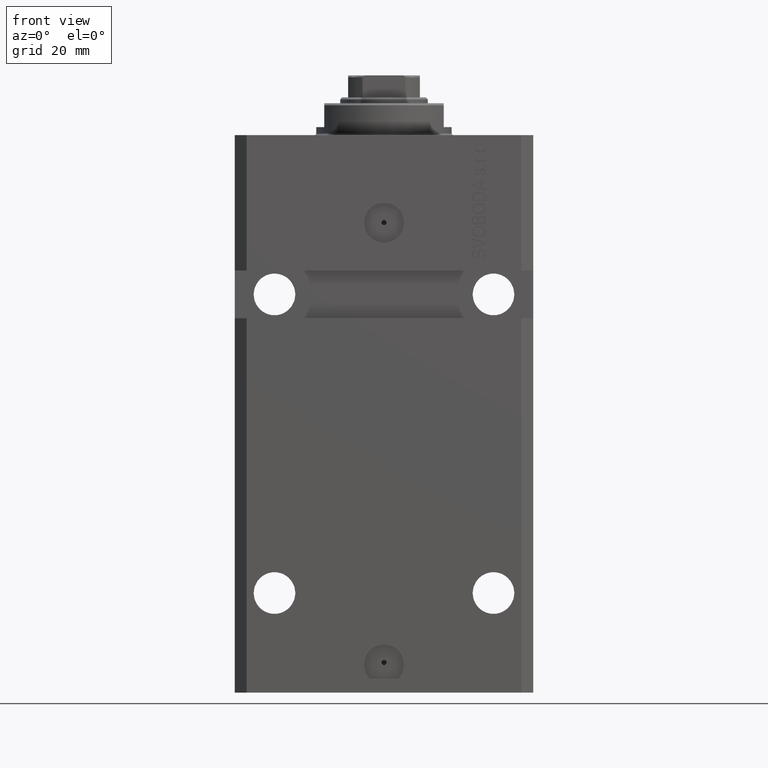
[diagram: clean part render]
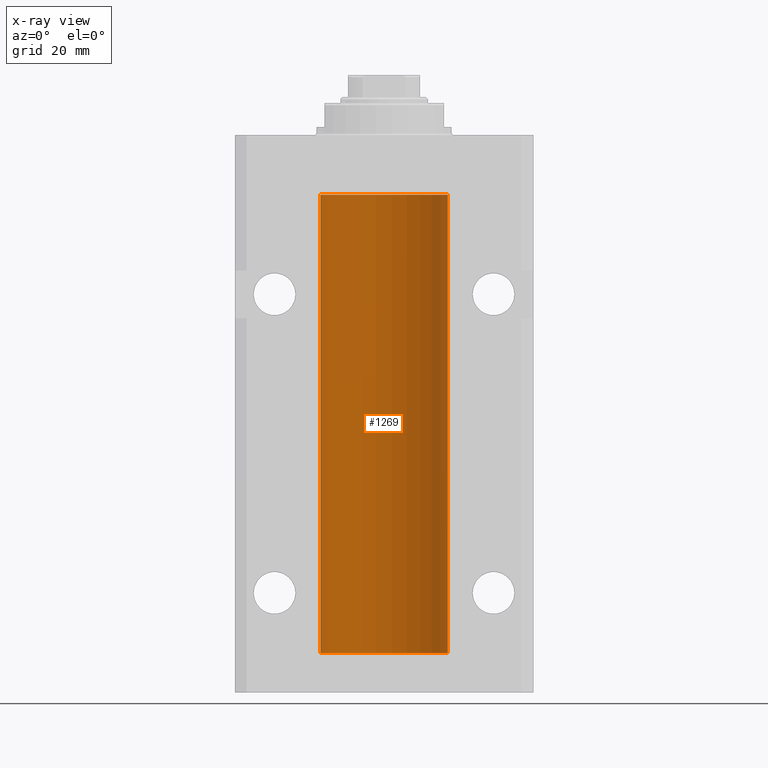
[diagram: x-ray — body ghosted, one internal face saturated and labeled with its STEP entity id]
A machine part, front view, then the same camera in x-ray: the body is ghosted and one INTERNAL B-rep face — a face not visible from any outside direction — is saturated and labeled: STEP entity #1269.
In plain terms, the highlighted cylindrical surface (partial cylindrical patch) has radius 16 mm, axis along (0, 0, 1).
Its self-contained STEP definition (entity closure, byte-faithful):
#329 = VERTEX_POINT ( 'NONE', #566 ) ;
#566 = CARTESIAN_POINT ( 'NONE',  ( -16.00000000000000000, 1.959434878635765131E-15, -130.0999999999999943 ) ) ;
#1269 = ADVANCED_FACE ( 'NONE', ( #21809 ), #36666, .F. ) ;
#1498 = CARTESIAN_POINT ( 'NONE',  ( -15.99707730059171240, 0.3150375992092247501, -127.4540233320256561 ) ) ;
#2246 = CARTESIAN_POINT ( 'NONE',  ( -15.98779057735153941, 0.6249419637998100407, -21.83670145863507273 ) ) ;
#2481 = CARTESIAN_POINT ( 'NONE',  ( -16.00000000000000000, 0.1631714642025800244, -22.62499999999985789 ) ) ;
#3940 = AXIS2_PLACEMENT_3D ( 'NONE', #25869, #29474, #29714 ) ;
#4009 = ORIENTED_EDGE ( 'NONE', *, *, #4869, .T. ) ;
#4211 = AXIS2_PLACEMENT_3D ( 'NONE', #16517, #31622, #31152 ) ;
#4853 = CARTESIAN_POINT ( 'NONE',  ( -16.00000000000000355, 0.08259886010188438599, -127.3749999999999574 ) ) ;
#4869 = EDGE_CURVE ( 'NONE', #18736, #7954, #21073, .T. ) ;
#5834 = CARTESIAN_POINT ( 'NONE',  ( -15.99070426498503217, 0.5462220647145618058, -22.31460064614143590 ) ) ;
#6303 = ORIENTED_EDGE ( 'NONE', *, *, #42989, .F. ) ;
#6544 = CARTESIAN_POINT ( 'NONE',  ( -15.99228023727724413, 0.5003781296993413674, -22.38347829554236057 ) ) ;
#6783 = CARTESIAN_POINT ( 'NONE',  ( -15.98844267028591482, 0.6088369347963316081, -22.16324735024328518 ) ) ;
#7954 = VERTEX_POINT ( 'NONE', #29837 ) ;
#8820 = VERTEX_POINT ( 'NONE', #35389 ) ;
#8901 = CARTESIAN_POINT ( 'NONE',  ( -15.99228023727723702, 0.5003781296993445871, -128.3834782955424032 ) ) ;
#9879 = EDGE_CURVE ( 'NONE', #34919, #25798, #24839, .T. ) ;
#10030 = ORIENTED_EDGE ( 'NONE', *, *, #14849, .F. ) ;
#10094 = EDGE_LOOP ( 'NONE', ( #36139, #10030, #18610, #18078, #11227, #4009, #6303, #24232 ) ) ;
#10214 = CARTESIAN_POINT ( 'NONE',  ( -16.00000000000013145, 3.685127464164956467E-13, -128.6250000000034390 ) ) ;
#11158 = CARTESIAN_POINT ( 'NONE',  ( 16.00000000000000000, 0.000000000000000000, -130.0999999999999943 ) ) ;
#11227 = ORIENTED_EDGE ( 'NONE', *, *, #17752, .F. ) ;
#11254 = CARTESIAN_POINT ( 'NONE',  ( 16.00000000000000000, 0.000000000000000000, -15.00000000000000000 ) ) ;
#12715 = CARTESIAN_POINT ( 'NONE',  ( -15.98779057735154296, 0.6249419637998029353, -127.8367014586350763 ) ) ;
#14116 = CIRCLE ( 'NONE', #17196, 16.00000000000000000 ) ;
#14849 = EDGE_CURVE ( 'NONE', #26404, #329, #14116, .T. ) ;
#15150 = VECTOR ( 'NONE', #23320, 1000.000000000000000 ) ;
#16517 = CARTESIAN_POINT ( 'NONE',  ( 0.000000000000000000, 0.000000000000000000, -15.00000000000000000 ) ) ;
#16627 = VECTOR ( 'NONE', #26899, 1000.000000000000000 ) ;
#17065 = CARTESIAN_POINT ( 'NONE',  ( -15.99070653155267685, 0.5573233280232986475, -21.67348148680506625 ) ) ;
#17196 = AXIS2_PLACEMENT_3D ( 'NONE', #21118, #38841, #24708 ) ;
#17752 = EDGE_CURVE ( 'NONE', #18736, #25798, #37870, .T. ) ;
#18078 = ORIENTED_EDGE ( 'NONE', *, *, #9879, .T. ) ;
#18610 = ORIENTED_EDGE ( 'NONE', *, *, #43967, .T. ) ;
#18736 = VERTEX_POINT ( 'NONE', #43938 ) ;
#19426 = CARTESIAN_POINT ( 'NONE',  ( -15.99934216141748244, 0.1636497843296232380, -127.3912652802930694 ) ) ;
#19528 = CARTESIAN_POINT ( 'NONE',  ( -16.00000000000000000, 1.959434878635765131E-15, -15.00000000000000000 ) ) ;
#19723 = LINE ( 'NONE', #45368, #15150 ) ;
#19998 = EDGE_CURVE ( 'NONE', #8820, #41471, #43292, .T. ) ;
#20653 = CARTESIAN_POINT ( 'NONE',  ( -15.99934216141748244, 0.1636497843296417787, -21.39126528029306229 ) ) ;
#21073 = B_SPLINE_CURVE_WITH_KNOTS ( 'NONE', 3,
 ( #35039, #35518, #20653, #35283, #38852, #17065, #2246, #24238, #6783, #5834, #6544, #21128, #2481, #42225 ),
 .UNSPECIFIED., .F., .F.,
 ( 4, 2, 2, 2, 2, 2, 4 ),
 ( 1.597328219370744179E-19, 0.0002442776652680942405, 0.0004885553305361882643, 0.0009771106610723839011, 0.001221388326340481665, 0.001465665991608579430, 0.001954221322144767369 ),
 .UNSPECIFIED. ) ;
#21118 = CARTESIAN_POINT ( 'NONE',  ( 0.000000000000000000, 0.000000000000000000, -130.0999999999999943 ) ) ;
#21128 = CARTESIAN_POINT ( 'NONE',  ( -15.99711699979842017, 0.3253759916140657737, -22.55856151623175521 ) ) ;
#21809 = FACE_OUTER_BOUND ( 'NONE', #10094, .T. ) ;
#21885 = EDGE_CURVE ( 'NONE', #329, #41471, #34101, .T. ) ;
#23320 = DIRECTION ( 'NONE',  ( -0.000000000000000000, -0.000000000000000000, 1.000000000000000000 ) ) ;
#23484 = CARTESIAN_POINT ( 'NONE',  ( -15.99711699979841661, 0.3253759916140733233, -128.5585615162317765 ) ) ;
#24232 = ORIENTED_EDGE ( 'NONE', *, *, #19998, .T. ) ;
#24238 = CARTESIAN_POINT ( 'NONE',  ( -15.98778717651346071, 0.6250289588122140971, -22.08131585687052478 ) ) ;
#24708 = DIRECTION ( 'NONE',  ( 1.000000000000000000, 0.000000000000000000, 0.000000000000000000 ) ) ;
#24839 = CIRCLE ( 'NONE', #4211, 16.00000000000000000 ) ;
#25798 = VERTEX_POINT ( 'NONE', #19528 ) ;
#25869 = CARTESIAN_POINT ( 'NONE',  ( 0.000000000000000000, 0.000000000000000000, -130.0999999999999943 ) ) ;
#26404 = VERTEX_POINT ( 'NONE', #11158 ) ;
#26899 = DIRECTION ( 'NONE',  ( -0.000000000000000000, -0.000000000000000000, 1.000000000000000000 ) ) ;
#27589 = LINE ( 'NONE', #35268, #35772 ) ;
#29474 = DIRECTION ( 'NONE',  ( -0.000000000000000000, -0.000000000000000000, 1.000000000000000000 ) ) ;
#29714 = DIRECTION ( 'NONE',  ( 1.000000000000000000, 0.000000000000000000, 0.000000000000000000 ) ) ;
#29837 = CARTESIAN_POINT ( 'NONE',  ( -16.00000000000013145, 3.685127038166941002E-13, -22.62500000000341771 ) ) ;
#30705 = CARTESIAN_POINT ( 'NONE',  ( -16.00000000000000000, -1.314639473218082033E-14, -127.3749999999999858 ) ) ;
#30937 = CARTESIAN_POINT ( 'NONE',  ( -15.99070653155267685, 0.5573233280232815501, -127.6734814868050449 ) ) ;
#31152 = DIRECTION ( 'NONE',  ( 1.000000000000000000, 0.000000000000000000, 0.000000000000000000 ) ) ;
#31622 = DIRECTION ( 'NONE',  ( 0.000000000000000000, 0.000000000000000000, 1.000000000000000000 ) ) ;
#33352 = DIRECTION ( 'NONE',  ( -0.000000000000000000, -0.000000000000000000, 1.000000000000000000 ) ) ;
#34060 = CARTESIAN_POINT ( 'NONE',  ( -15.99548640841682712, 0.3843705577988635880, -127.5004662852700932 ) ) ;
#34101 = LINE ( 'NONE', #38141, #16627 ) ;
#34919 = VERTEX_POINT ( 'NONE', #11254 ) ;
#35039 = CARTESIAN_POINT ( 'NONE',  ( -16.00000000000000000, 1.643679961284177128E-16, -21.37499999999999645 ) ) ;
#35268 = CARTESIAN_POINT ( 'NONE',  ( -16.00000000000000000, 1.959434878635765131E-15, -130.0999999999999943 ) ) ;
#35283 = CARTESIAN_POINT ( 'NONE',  ( -15.99707730059171240, 0.3150375992092407373, -21.45402333202571654 ) ) ;
#35389 = CARTESIAN_POINT ( 'NONE',  ( -16.00000000000000000, -1.314639473218082033E-14, -127.3749999999999858 ) ) ;
#35518 = CARTESIAN_POINT ( 'NONE',  ( -16.00000000000000711, 0.08259886010189904093, -21.37500000000000000 ) ) ;
#35772 = VECTOR ( 'NONE', #39318, 1000.000000000000000 ) ;
#36139 = ORIENTED_EDGE ( 'NONE', *, *, #21885, .F. ) ;
#36374 = VECTOR ( 'NONE', #33352, 1000.000000000000000 ) ;
#36666 = CYLINDRICAL_SURFACE ( 'NONE', #3940, 16.00000000000000000 ) ;
#37870 = LINE ( 'NONE', #38098, #36374 ) ;
#38097 = CARTESIAN_POINT ( 'NONE',  ( -15.99999999999999289, 0.1631714642025817730, -128.6249999999999147 ) ) ;
#38098 = CARTESIAN_POINT ( 'NONE',  ( -16.00000000000000000, 1.959434878635765131E-15, -130.0999999999999943 ) ) ;
#38141 = CARTESIAN_POINT ( 'NONE',  ( -16.00000000000000000, 1.959434878635765131E-15, -130.0999999999999943 ) ) ;
#38336 = CARTESIAN_POINT ( 'NONE',  ( -15.98844267028591482, 0.6088369347963276113, -128.1632473502432674 ) ) ;
#38841 = DIRECTION ( 'NONE',  ( 0.000000000000000000, 0.000000000000000000, 1.000000000000000000 ) ) ;
#38852 = CARTESIAN_POINT ( 'NONE',  ( -15.99548640841683067, 0.3843705577988847377, -21.50046628527008608 ) ) ;
#39318 = DIRECTION ( 'NONE',  ( -0.000000000000000000, -0.000000000000000000, 1.000000000000000000 ) ) ;
#41471 = VERTEX_POINT ( 'NONE', #10214 ) ;
#41705 = CARTESIAN_POINT ( 'NONE',  ( -15.99070426498503217, 0.5462220647145575869, -128.3146006461414288 ) ) ;
#42225 = CARTESIAN_POINT ( 'NONE',  ( -16.00000000000013145, 3.685127038166941002E-13, -22.62500000000341771 ) ) ;
#42890 = CARTESIAN_POINT ( 'NONE',  ( -16.00000000000013145, 3.685127464164956467E-13, -128.6250000000034390 ) ) ;
#42989 = EDGE_CURVE ( 'NONE', #8820, #7954, #27589, .T. ) ;
#43292 = B_SPLINE_CURVE_WITH_KNOTS ( 'NONE', 3,
 ( #30705, #4853, #19426, #1498, #34060, #30937, #12715, #45298, #38336, #41705, #8901, #23484, #38097, #42890 ),
 .UNSPECIFIED., .F., .F.,
 ( 4, 2, 2, 2, 2, 2, 4 ),
 ( 2.457764170500729066E-18, 0.0002442776652680811759, 0.0004885553305361599666, 0.0009771106610723173311, 0.001221388326340437647, 0.001465665991608557962, 0.001954221322144799027 ),
 .UNSPECIFIED. ) ;
#43938 = CARTESIAN_POINT ( 'NONE',  ( -16.00000000000000000, 1.643679961284177128E-16, -21.37499999999999645 ) ) ;
#43967 = EDGE_CURVE ( 'NONE', #26404, #34919, #19723, .T. ) ;
#45298 = CARTESIAN_POINT ( 'NONE',  ( -15.98778717651346604, 0.6250289588122058815, -128.0813158568705603 ) ) ;
#45368 = CARTESIAN_POINT ( 'NONE',  ( 16.00000000000000000, 0.000000000000000000, -130.0999999999999943 ) ) ;